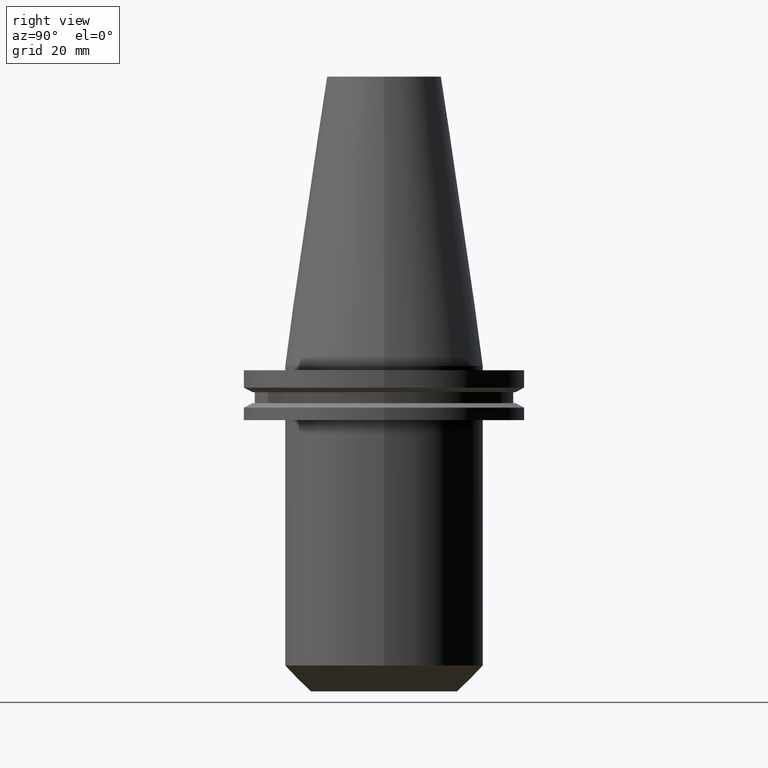
[diagram: clean part render]
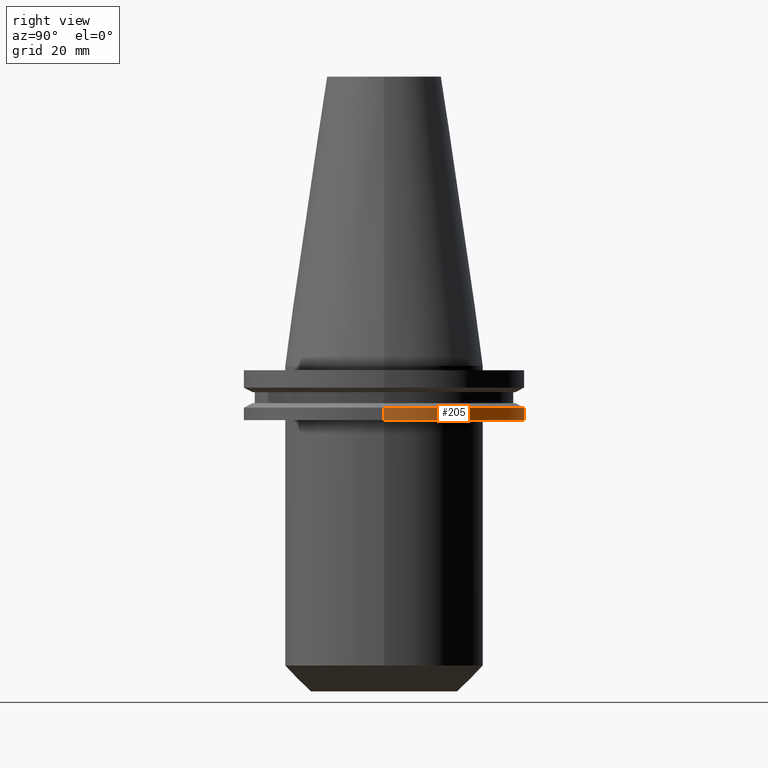
[diagram: same view with one face highlighted and labeled with its STEP entity id]
A machine part, right view. The second image highlights one B-rep face of the part: STEP entity #205.
In plain terms, the highlighted cylindrical surface (partial cylindrical patch) has radius 49.215 mm, axis along (-0, -0, 1).
Its self-contained STEP definition (entity closure, byte-faithful):
#37 = CYLINDRICAL_SURFACE ( 'NONE', #683, 49.21499999999998920 ) ;
#81 = CARTESIAN_POINT ( 'NONE',  ( -49.21499999999998920, 6.027099222003697037E-15, -19.04999999999999716 ) ) ;
#83 = ORIENTED_EDGE ( 'NONE', *, *, #644, .F. ) ;
#86 = CARTESIAN_POINT ( 'NONE',  ( -49.21499999999998920, 6.027099222003697037E-15, -14.65761014474876944 ) ) ;
#147 = EDGE_CURVE ( 'NONE', #509, #504, #339, .T. ) ;
#150 = DIRECTION ( 'NONE',  ( 1.000000000000000000, 0.000000000000000000, 0.000000000000000000 ) ) ;
#153 = CARTESIAN_POINT ( 'NONE',  ( 0.000000000000000000, 0.000000000000000000, -14.65761014474876944 ) ) ;
#160 = VECTOR ( 'NONE', #693, 1000.000000000000000 ) ;
#167 = DIRECTION ( 'NONE',  ( -0.000000000000000000, -0.000000000000000000, 1.000000000000000000 ) ) ;
#183 = CIRCLE ( 'NONE', #642, 49.21499999999998920 ) ;
#189 = VERTEX_POINT ( 'NONE', #520 ) ;
#205 = ADVANCED_FACE ( 'NONE', ( #446 ), #37, .T. ) ;
#223 = DIRECTION ( 'NONE',  ( 1.000000000000000000, 0.000000000000000000, 0.000000000000000000 ) ) ;
#238 = EDGE_LOOP ( 'NONE', ( #723, #564, #328, #83 ) ) ;
#257 = CARTESIAN_POINT ( 'NONE',  ( 49.21499999999998920, 0.000000000000000000, -19.04999999999999716 ) ) ;
#271 = CIRCLE ( 'NONE', #704, 49.21499999999998920 ) ;
#293 = CARTESIAN_POINT ( 'NONE',  ( 0.000000000000000000, 0.000000000000000000, -19.04999999999999716 ) ) ;
#294 = VECTOR ( 'NONE', #631, 1000.000000000000000 ) ;
#325 = EDGE_CURVE ( 'NONE', #440, #509, #271, .T. ) ;
#328 = ORIENTED_EDGE ( 'NONE', *, *, #662, .F. ) ;
#339 = LINE ( 'NONE', #342, #294 ) ;
#340 = LINE ( 'NONE', #753, #160 ) ;
#342 = CARTESIAN_POINT ( 'NONE',  ( -49.21499999999998920, 6.027099222003697037E-15, 101.5999999999999943 ) ) ;
#440 = VERTEX_POINT ( 'NONE', #257 ) ;
#446 = FACE_OUTER_BOUND ( 'NONE', #238, .T. ) ;
#472 = DIRECTION ( 'NONE',  ( 1.000000000000000000, 0.000000000000000000, 0.000000000000000000 ) ) ;
#504 = VERTEX_POINT ( 'NONE', #86 ) ;
#509 = VERTEX_POINT ( 'NONE', #81 ) ;
#520 = CARTESIAN_POINT ( 'NONE',  ( 49.21499999999998920, 0.000000000000000000, -14.65761014474876944 ) ) ;
#564 = ORIENTED_EDGE ( 'NONE', *, *, #147, .T. ) ;
#573 = DIRECTION ( 'NONE',  ( -0.000000000000000000, -0.000000000000000000, 1.000000000000000000 ) ) ;
#574 = CARTESIAN_POINT ( 'NONE',  ( 0.000000000000000000, 0.000000000000000000, 101.5999999999999943 ) ) ;
#631 = DIRECTION ( 'NONE',  ( -0.000000000000000000, -0.000000000000000000, 1.000000000000000000 ) ) ;
#635 = DIRECTION ( 'NONE',  ( -0.000000000000000000, -0.000000000000000000, 1.000000000000000000 ) ) ;
#642 = AXIS2_PLACEMENT_3D ( 'NONE', #153, #573, #150 ) ;
#644 = EDGE_CURVE ( 'NONE', #440, #189, #340, .T. ) ;
#662 = EDGE_CURVE ( 'NONE', #189, #504, #183, .T. ) ;
#683 = AXIS2_PLACEMENT_3D ( 'NONE', #574, #635, #223 ) ;
#693 = DIRECTION ( 'NONE',  ( -0.000000000000000000, -0.000000000000000000, 1.000000000000000000 ) ) ;
#704 = AXIS2_PLACEMENT_3D ( 'NONE', #293, #167, #472 ) ;
#723 = ORIENTED_EDGE ( 'NONE', *, *, #325, .T. ) ;
#753 = CARTESIAN_POINT ( 'NONE',  ( 49.21499999999998920, 0.000000000000000000, 101.5999999999999943 ) ) ;